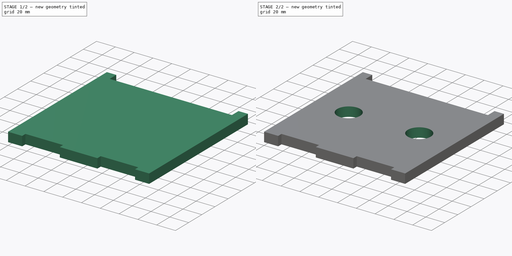
[diagram: build sequence overview — one tinted view per stage of 2, left to right]
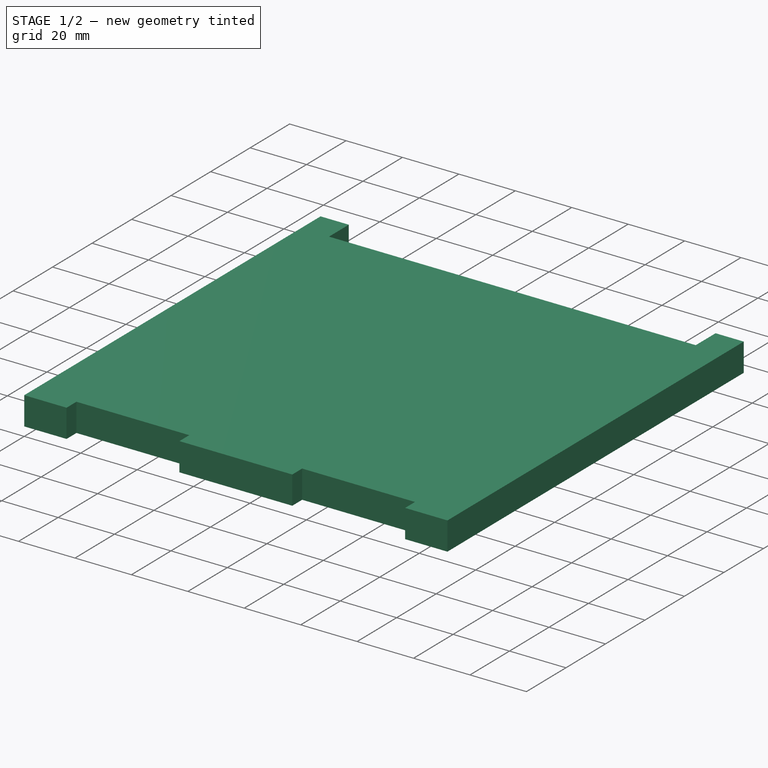
[diagram: stage 1 of 2 — iso view after this stage's code; geometry added in this stage tinted green]
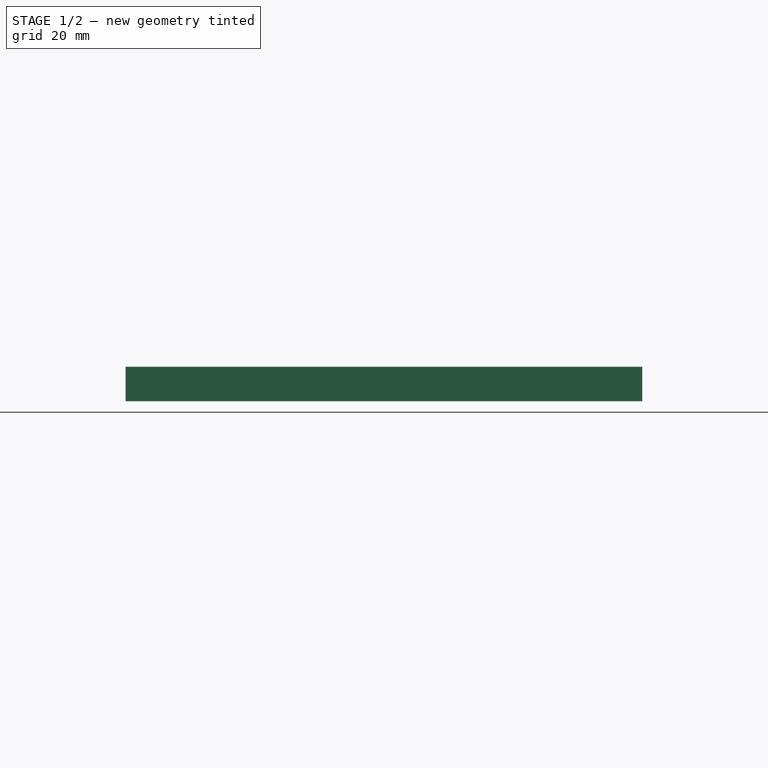
[diagram: stage 1 of 2 — front view after this stage's code; geometry added in this stage tinted green]
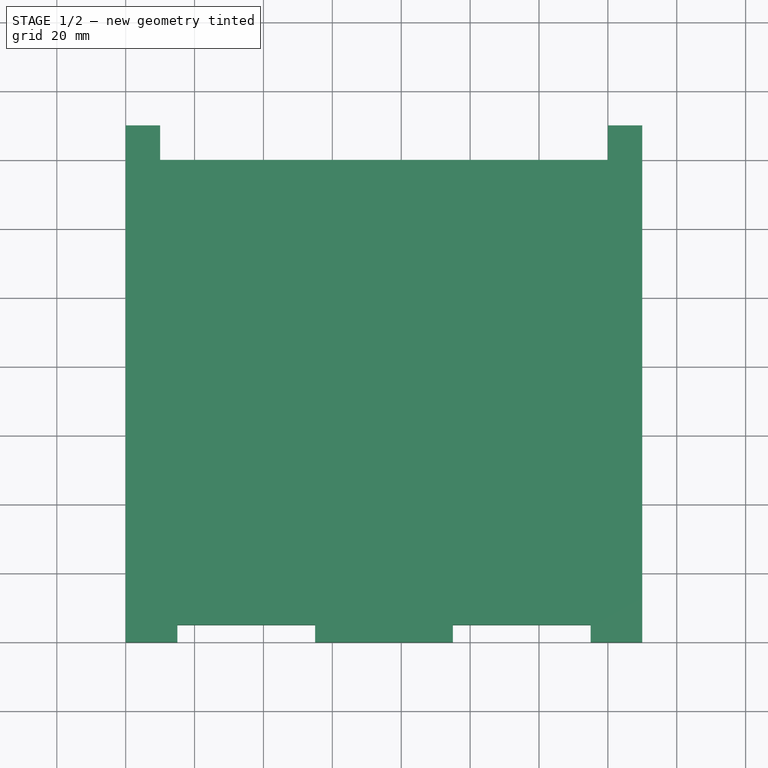
[diagram: stage 1 of 2 — top view after this stage's code; geometry added in this stage tinted green]
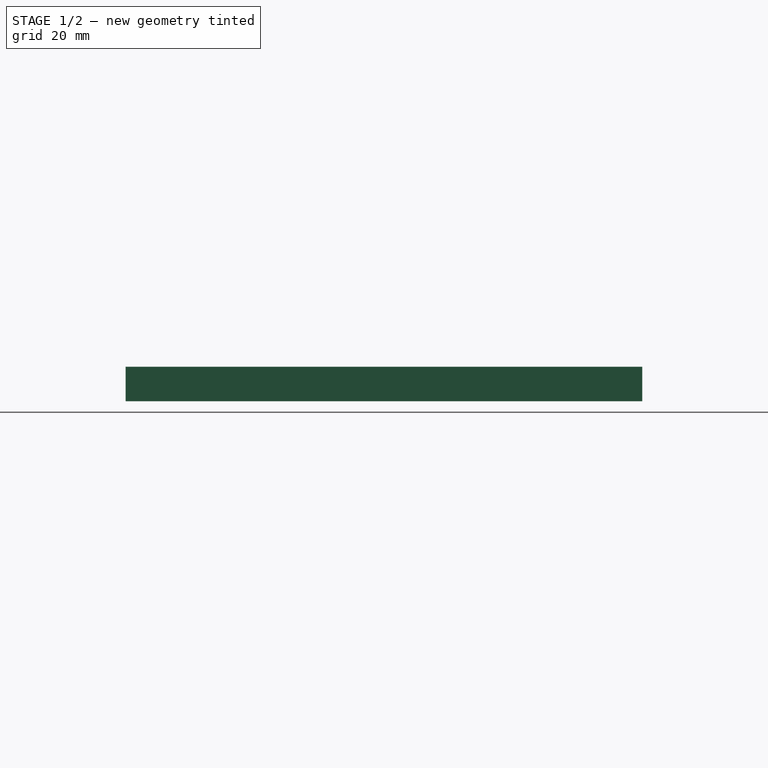
[diagram: stage 1 of 2 — right view after this stage's code; geometry added in this stage tinted green]
FCSTD DOCUMENT  (FreeCAD 0.19R24276 (Git))
Label: mix_components
License: All rights reserved
LicenseURL: http://en.wikipedia.org/wiki/All_rights_reserved
objects: Drawing::FeatureViewPart×13, Part::Feature×6, Sketcher::SketchObject×2, PartDesign::Pad×1, PartDesign::Pocket×1, PartDesign::Body×1, Drawing::FeaturePage×1
note: 13 computed .brp shape members not serialized (recipe doc carries the construction recipe); baked Part::Feature solids carry a one-line shape summary decoded from their .brp

FEATURE [Sketcher::SketchObject] Sketch
  FullyConstrained = true
  MapMode = 5
  Support = -> [XY_Plane]
  sketch-geometry (16):
    g0: LineSegment StartX=150 StartY=0 StartZ=0 EndX=150 EndY=150 EndZ=0
    g1: LineSegment StartX=150 StartY=150 StartZ=0 EndX=140 EndY=150 EndZ=0
    g2: LineSegment StartX=140 StartY=150 StartZ=0 EndX=140 EndY=140 EndZ=0
    g3: LineSegment StartX=140 StartY=140 StartZ=0 EndX=10 EndY=140 EndZ=0
    g4: LineSegment StartX=10 StartY=140 StartZ=0 EndX=10 EndY=150 EndZ=0
    g5: LineSegment StartX=10 StartY=150 StartZ=0 EndX=0 EndY=150 EndZ=0
    g6: LineSegment StartX=0 StartY=0 StartZ=0 EndX=0 EndY=150 EndZ=0
    g7: LineSegment StartX=15 StartY=5 StartZ=0 EndX=55 EndY=5 EndZ=0
    g8: LineSegment StartX=55 StartY=5 StartZ=0 EndX=55 EndY=0 EndZ=0
    g9: LineSegment StartX=55 StartY=0 StartZ=0 EndX=95 EndY=0 EndZ=0
    g10: LineSegment StartX=95 StartY=0 StartZ=0 EndX=95 EndY=5 EndZ=0
    g11: LineSegment StartX=95 StartY=5 StartZ=0 EndX=135 EndY=5 EndZ=0
    g12: LineSegment StartX=135 StartY=5 StartZ=0 EndX=135 EndY=0 EndZ=0
    g13: LineSegment StartX=135 StartY=0 StartZ=0 EndX=150 EndY=0 EndZ=0
    g14: LineSegment StartX=15 StartY=5 StartZ=0 EndX=15 EndY=0 EndZ=0
    g15: LineSegment StartX=15 StartY=0 StartZ=0 EndX=0 EndY=0 EndZ=0
  constraints (47):
    c: Vertical(g0)
    c: Coincident(g0,g1)
    c: Horizontal(g1)
    c: Coincident(g1,g2)
    c: Coincident(g2,g3)
    c: Horizontal(g3)
    c: Vertical(g2)
    c: Coincident(g3,g4)
    c: Vertical(g4)
    c: Coincident(g4,g5)
    c: Coincident(g6,g5)
    c: Vertical(g6)
    c: Horizontal(g5)
    c: Equal(g1,g5)
    c: Equal(g6,g0)
    c: DistanceX(g5,g5) = 10
    c: DistanceY(g0,g0) = 150
    c: DistanceY(g2,g2) = 10
    c: Horizontal(g7)
    c: Coincident(g7,g8)
    c: PointOnObject(g8,g-1)
    c: Coincident(g8,g9)
    c: PointOnObject(g9,g-1)
    c: Coincident(g9,g10)
    c: Coincident(g10,g11)
    c: Horizontal(g11)
    c: Coincident(g11,g12)
    c: PointOnObject(g12,g-1)
    c: Vertical(g12)
    c: Coincident(g12,g13)
    c: Coincident(g13,g0)
    c: Horizontal(g13)
    c: Coincident(g7,g14)
    c: PointOnObject(g14,g-1)
    c: Vertical(g14)
    c: Coincident(g14,g15)
    c: Coincident(g15,g6)
    c: Coincident(g6,g-1)
    c: Vertical(g8)
    c: Vertical(g10)
    c: Equal(g15,g13)
    c: Equal(g7,g11)
    c: DistanceX(g7,g7) = 40
    c: DistanceX(g15,g15) = 15
    c: Equal(g8,g10)
    c: DistanceY(g10,g10) = 5
    c: DistanceX(g3,g3) = 130
FEATURE [PartDesign::Pad] Pad
  Direction = (1,1,1)
  Length = 10
  Length2 = 100
  Profile = -> Sketch
  Type = 0
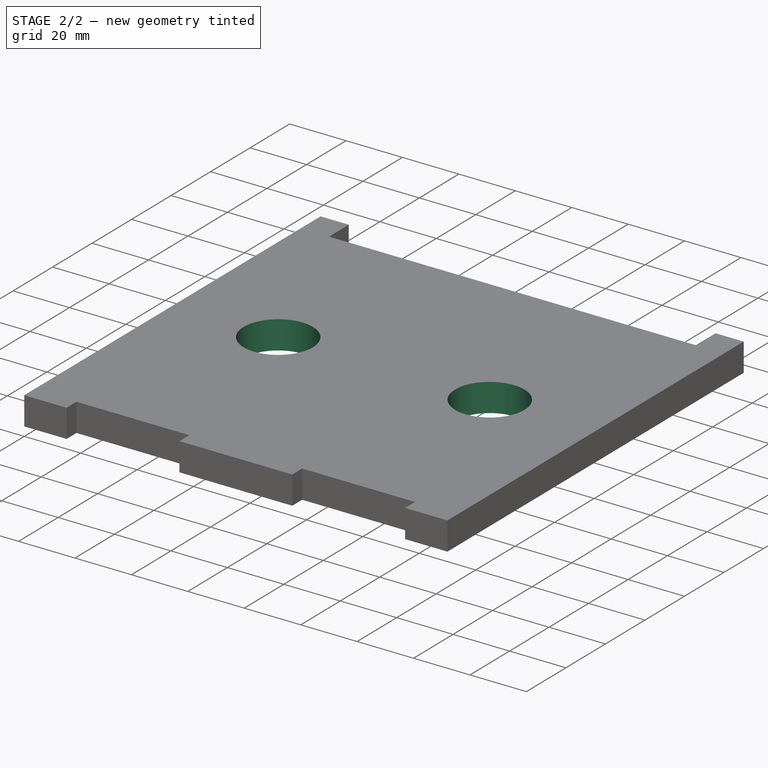
[diagram: stage 2 of 2 — iso view after this stage's code; geometry added in this stage tinted green]
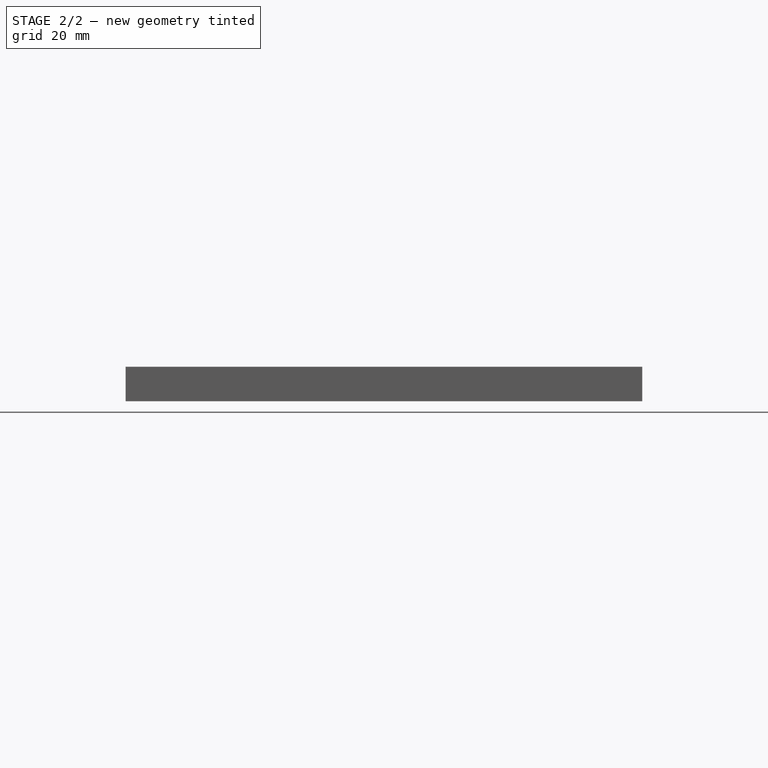
[diagram: stage 2 of 2 — front view after this stage's code; geometry added in this stage tinted green]
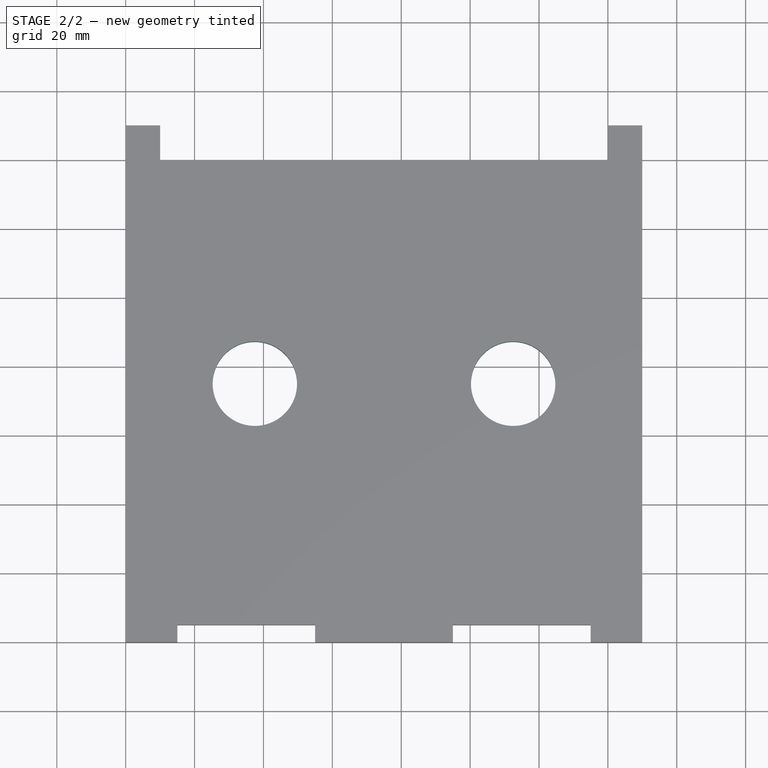
[diagram: stage 2 of 2 — top view after this stage's code; geometry added in this stage tinted green]
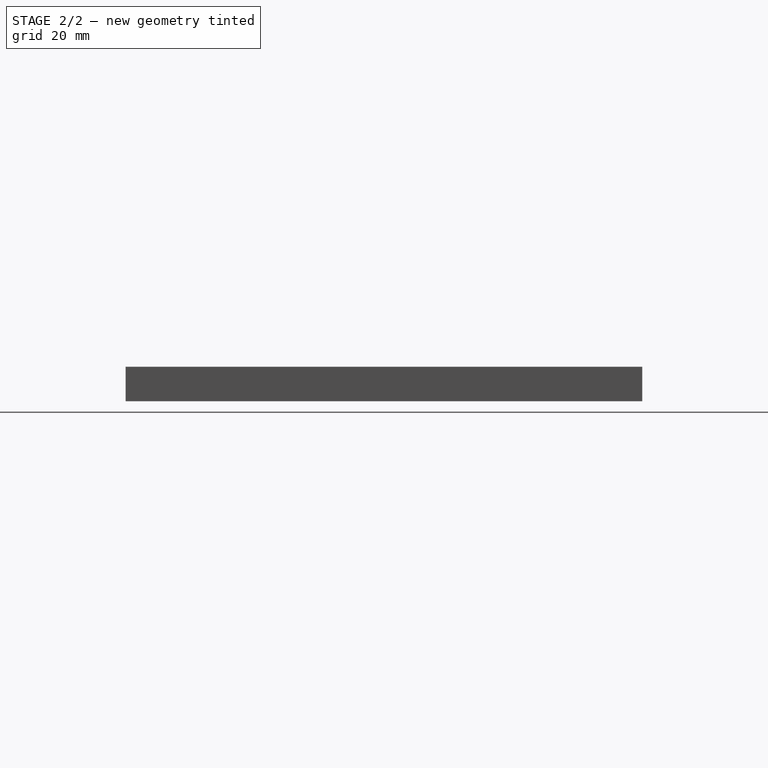
[diagram: stage 2 of 2 — right view after this stage's code; geometry added in this stage tinted green]
FEATURE [Sketcher::SketchObject] Sketch001
  FullyConstrained = true
  MapMode = 5
  Placement = pos=(0,0,10) rot=(0,0,1;0rad)
  Support = -> [Pad]
  sketch-geometry (2):
    g0: Circle CenterX=37.5 CenterY=75 CenterZ=0 NormalX=0 NormalY=0 NormalZ=1 AngleXU=0 Radius=12.25
    g1: Circle CenterX=112.5 CenterY=75 CenterZ=0 NormalX=0 NormalY=0 NormalZ=1 AngleXU=0 Radius=12.25
  constraints (6):
    c: DistanceX(g-1,g0) = 37.5
    c: Diameter(g0) = 24.5
    c: DistanceY(g-1,g0) = 75
    c: Equal(g0,g1) = 24.5
    c: DistanceX(g-1,g1) = 112.5
    c: DistanceY(g-1,g1) = 75
FEATURE [PartDesign::Pocket] Pocket
  BaseFeature = -> Pad
  Length = 10
  Length2 = 100
  Profile = -> Sketch001
  Type = 1
FEATURE [PartDesign::Body] Body
  Group = -> [Sketch,Pad,Sketch001,Pocket]
  Origin = -> Origin
  Tip = -> Pocket
FEATURE [Drawing::FeatureViewPart] Ortho  label="Ortho_0_0"
  Direction = (1,0,0)
  HiddenWidth = 0.15
  LineWidth = 0.35
  Rotation = -90
  Scale = 0.375
  ShowHiddenLines = false
  ShowSmoothLines = false
  Source = -> Body
  Tolerance = 0.05
  ViewResult = <g id="Ortho_0_0"\n   transform="rotate(-90,181.875,120.375) translate(181.875,120.375) scale(0.375,0.375)"\n  >\n<g   fill="none"\n   stroke="rgb(0, 0, 0)"\n   stroke-linecap="butt"\n   stroke-linejoin="miter"\n   stroke-width="0.933333"\n   transform="scale(1,-1)"\n  >\n<path id= "1" d=" M 0 0 L 0 -150 " />\n<path id= "2" d=" M 10 0 L 10 -150 " />\n<path id= "3" d=" M 0 0 L 10 0 " />\n<path id= "4" d=" M 0 -150 L 10 -150 " />\n</g>\n</g>
  Visible = false
  X = 181.875
  Y = 120.375
FEATURE [Drawing::FeatureViewPart] Ortho001  label="Ortho_-1_1"
  Direction = (0.57735,-0.57735,0.57735)
  HiddenWidth = 0.15
  LineWidth = 0.35
  Rotation = 60
  Scale = 0.375
  ShowHiddenLines = false
  ShowSmoothLines = false
  Source = -> Body
  Tolerance = 0.05
  ViewResult = <blob: 2807 chars omitted>
  Visible = false
  X = 94.1836
  Y = 74.4893
FEATURE [Drawing::FeatureViewPart] Ortho002  label="Ortho_-1_0"
  Direction = (0,-1,0)
  HiddenWidth = 0.15
  LineWidth = 0.35
  Rotation = 90
  Scale = 0.375
  ShowHiddenLines = false
  ShowSmoothLines = false
  Source = -> Body
  Tolerance = 0.05
  ViewResult = <g id="Ortho_-1_0"\n   transform="rotate(90,105.833,120.375) translate(105.833,120.375) scale(0.375,0.375)"\n  >\n<g   fill="none"\n   stroke="rgb(0, 0, 0)"\n   stroke-linecap="butt"\n   stroke-linejoin="miter"\n   stroke-width="0.933333"\n   transform="scale(1,-1)"\n  >\n<path id= "1" d=" M 0 15 L 0 55 " />\n<path id= "2" d=" M -10 15 L -10 55 " />\n<path id= "3" d=" M 0 15 L -10 15 " />\n<path id= "4" d=" M 0 55 L -10 55 " />\n<path id= "5" d=" M 0 15 L 0 0 " />\n<path id= "6" d=" M 0 55 L 0 95 " />\n<path id= "7" d=" M 0 95 L 0 135 " />\n<path id= "8" d=" M 0 135 L 0 150 " />\n<path id= "9" d=" M -10 15 L -10 0 " />\n<path id= "10" d=" M -10 55 L -10 95 " />\n<path id= "11" d=" M -10 95 L -10 135 " />\n<path id= "12" d=" M -10 135 L -10 150 " />\n<path id= "13" d=" M 0 0 L -10 0 " />\n<path id= "14" d=" M 0 95 L -10 95 " />\n<path id= "15" d=" M 0 135 L -10 135 " />\n<path id= "16" d=" M 0 150 L -10 150 " />\n</g>\n</g>
  Visible = false
  X = 105.833
  Y = 120.375
FEATURE [Drawing::FeatureViewPart] Ortho003  label="Ortho_-1_-1"
  Direction = (0.57735,-0.57735,-0.57735)
  HiddenWidth = 0.15
  LineWidth = 0.35
  Rotation = 120
  Scale = 0.375
  ShowHiddenLines = false
  ShowSmoothLines = false
  Source = -> Body
  Tolerance = 0.05
  ViewResult = <blob: 2895 chars omitted>
  Visible = false
  X = 94.1836
  Y = 165.573
FEATURE [Drawing::FeatureViewPart] Ortho004  label="Ortho_0_-1"
  Direction = (0,0,-1)
  HiddenWidth = 0.15
  LineWidth = 0.35
  Rotation = 90
  Scale = 0.375
  ShowHiddenLines = false
  ShowSmoothLines = false
  Source = -> Body
  Tolerance = 0.05
  ViewResult = <g id="Ortho_0_-1"\n   transform="rotate(90,181.875,192.167) translate(181.875,192.167) scale(0.375,0.375)"\n  >\n<g   fill="none"\n   stroke="rgb(0, 0, 0)"\n   stroke-linecap="butt"\n   stroke-linejoin="miter"\n   stroke-width="0.933333"\n   transform="scale(1,-1)"\n  >\n<path id= "1" d=" M -15 5 L -55 5 " />\n<path id= "2" d=" M -15 5 L -15 0 " />\n<path id= "3" d=" M -55 5 L -55 0 " />\n<path id= "4" d=" M -15 0 L 0 0 " />\n<path id= "5" d=" M -55 0 L -95 0 " />\n<path id= "6" d=" M 0 0 L 0 150 " />\n<path id= "7" d=" M -95 0 L -95 5 " />\n<path id= "8" d=" M -10 150 L 0 150 " />\n<path id= "9" d=" M -95 5 L -135 5 " />\n<path id= "10" d=" M -10 140 L -10 150 " />\n<path id= "11" d=" M -135 5 L -135 0 " />\n<path id= "12" d=" M -140 140 L -10 140 " />\n<path id= "13" d=" M -135 0 L -150 0 " />\n<path id= "14" d=" M -140 150 L -140 140 " />\n<path id= "15" d=" M -150 0 L -150 150 " />\n<path id= "16" d=" M -150 150 L -140 150 " />\n<circle cx ="-37.5" cy ="75" r ="12.25" /><circle cx ="-112.5" cy ="75" r ="12.25" /></g>\n</g>
  Visible = false
  X = 181.875
  Y = 192.167
FEATURE [Drawing::FeatureViewPart] Ortho005  label="Ortho_0_-2"
  Direction = (-1,0,0)
  HiddenWidth = 0.15
  LineWidth = 0.35
  Rotation = -90
  Scale = 0.375
  ShowHiddenLines = false
  ShowSmoothLines = false
  Source = -> Body
  Tolerance = 0.05
  ViewResult = <g id="Ortho_0_-2"\n   transform="rotate(-90,181.875,207.708) translate(181.875,207.708) scale(0.375,0.375)"\n  >\n<g   fill="none"\n   stroke="rgb(0, 0, 0)"\n   stroke-linecap="butt"\n   stroke-linejoin="miter"\n   stroke-width="0.933333"\n   transform="scale(1,-1)"\n  >\n<path id= "1" d=" M 0 0 L 0 -150 " />\n<path id= "2" d=" M -10 0 L -10 -150 " />\n<path id= "3" d=" M 0 0 L -10 0 " />\n<path id= "4" d=" M 0 -150 L -10 -150 " />\n</g>\n</g>
  Visible = false
  X = 181.875
  Y = 207.708
FEATURE [Drawing::FeatureViewPart] Ortho006  label="Ortho_0_2"
  Direction = (-1,0,0)
  HiddenWidth = 0.15
  LineWidth = 0.35
  Rotation = -90
  Scale = 0.375
  ShowHiddenLines = false
  ShowSmoothLines = false
  Source = -> Body
  Tolerance = 0.05
  ViewResult = <g id="Ortho_0_2"\n   transform="rotate(-90,181.875,25.5417) translate(181.875,25.5417) scale(0.375,0.375)"\n  >\n<g   fill="none"\n   stroke="rgb(0, 0, 0)"\n   stroke-linecap="butt"\n   stroke-linejoin="miter"\n   stroke-width="0.933333"\n   transform="scale(1,-1)"\n  >\n<path id= "1" d=" M 0 0 L 0 -150 " />\n<path id= "2" d=" M -10 0 L -10 -150 " />\n<path id= "3" d=" M 0 0 L -10 0 " />\n<path id= "4" d=" M 0 -150 L -10 -150 " />\n</g>\n</g>
  Visible = false
  X = 181.875
  Y = 25.5417
FEATURE [Drawing::FeatureViewPart] Ortho007  label="Ortho_0_1"
  Direction = (0,0,1)
  HiddenWidth = 0.15
  LineWidth = 0.35
  Rotation = 90
  Scale = 0.375
  ShowHiddenLines = false
  ShowSmoothLines = false
  Source = -> Body
  Tolerance = 0.05
  ViewResult = <g id="Ortho_0_1"\n   transform="rotate(90,181.875,44.8333) translate(181.875,44.8333) scale(0.375,0.375)"\n  >\n<g   fill="none"\n   stroke="rgb(0, 0, 0)"\n   stroke-linecap="butt"\n   stroke-linejoin="miter"\n   stroke-width="0.933333"\n   transform="scale(1,-1)"\n  >\n<path id= "1" d=" M 15 5 L 55 5 " />\n<path id= "2" d=" M 15 5 L 15 0 " />\n<path id= "3" d=" M 55 5 L 55 0 " />\n<path id= "4" d=" M 15 0 L 0 0 " />\n<path id= "5" d=" M 55 0 L 95 0 " />\n<path id= "6" d=" M 0 0 L 0 150 " />\n<path id= "7" d=" M 95 0 L 95 5 " />\n<path id= "8" d=" M 10 150 L 0 150 " />\n<path id= "9" d=" M 95 5 L 135 5 " />\n<path id= "10" d=" M 10 140 L 10 150 " />\n<path id= "11" d=" M 135 5 L 135 0 " />\n<path id= "12" d=" M 140 140 L 10 140 " />\n<path id= "13" d=" M 135 0 L 150 0 " />\n<path id= "14" d=" M 140 150 L 140 140 " />\n<path id= "15" d=" M 150 0 L 150 150 " />\n<path id= "16" d=" M 150 150 L 140 150 " />\n<circle cx ="37.5" cy ="75" r ="12.25" /><circle cx ="112.5" cy ="75" r ="12.25" /></g>\n</g>
  Visible = false
  X = 181.875
  Y = 44.8333
FEATURE [Drawing::FeatureViewPart] Ortho008  label="Ortho_1_0"
  Direction = (0,1,0)
  HiddenWidth = 0.15
  LineWidth = 0.35
  Rotation = -90
  Scale = 0.375
  ShowHiddenLines = false
  ShowSmoothLines = false
  Source = -> Body
  Tolerance = 0.05
  ViewResult = <g id="Ortho_1_0"\n   transform="rotate(-90,314.167,120.375) translate(314.167,120.375) scale(0.375,0.375)"\n  >\n<g   fill="none"\n   stroke="rgb(0, 0, 0)"\n   stroke-linecap="butt"\n   stroke-linejoin="miter"\n   stroke-width="0.933333"\n   transform="scale(1,-1)"\n  >\n<path id= "1" d=" M 0 10 L 0 0 " />\n<path id= "2" d=" M 0 140 L 0 10 " />\n<path id= "3" d=" M 0 150 L 0 140 " />\n<path id= "4" d=" M 10 10 L 10 0 " />\n<path id= "5" d=" M 10 140 L 10 10 " />\n<path id= "6" d=" M 10 150 L 10 140 " />\n<path id= "7" d=" M 0 0 L 10 0 " />\n<path id= "8" d=" M 0 10 L 10 10 " />\n<path id= "9" d=" M 0 140 L 10 140 " />\n<path id= "10" d=" M 0 150 L 10 150 " />\n</g>\n</g>
  Visible = false
  X = 314.167
  Y = 120.375
FEATURE [Drawing::FeatureViewPart] Ortho009  label="Ortho_1_1"
  Direction = (0.57735,0.57735,0.57735)
  HiddenWidth = 0.15
  LineWidth = 0.35
  Rotation = 120
  Scale = 0.375
  ShowHiddenLines = false
  ShowSmoothLines = false
  Source = -> Body
  Tolerance = 0.05
  ViewResult = <blob: 2536 chars omitted>
  Visible = false
  X = 286.042
  Y = 51.5253
FEATURE [Drawing::FeatureViewPart] Ortho010  label="Ortho_1_-1"
  Direction = (0.57735,0.57735,-0.57735)
  HiddenWidth = 0.15
  LineWidth = 0.35
  Rotation = 60
  Scale = 0.375
  ShowHiddenLines = false
  ShowSmoothLines = false
  Source = -> Body
  Tolerance = 0.05
  ViewResult = <blob: 2603 chars omitted>
  Visible = false
  X = 286.042
  Y = 188.537
FEATURE [Drawing::FeatureViewPart] Ortho011  label="Ortho_2_0"
  Direction = (-1,0,0)
  HiddenWidth = 0.15
  LineWidth = 0.35
  Rotation = 90
  Scale = 0.375
  ShowHiddenLines = false
  ShowSmoothLines = false
  Source = -> Body
  Tolerance = 0.05
  ViewResult = <g id="Ortho_2_0"\n   transform="rotate(90,390.208,120.375) translate(390.208,120.375) scale(0.375,0.375)"\n  >\n<g   fill="none"\n   stroke="rgb(0, 0, 0)"\n   stroke-linecap="butt"\n   stroke-linejoin="miter"\n   stroke-width="0.933333"\n   transform="scale(1,-1)"\n  >\n<path id= "1" d=" M 0 0 L 0 -150 " />\n<path id= "2" d=" M -10 0 L -10 -150 " />\n<path id= "3" d=" M 0 0 L -10 0 " />\n<path id= "4" d=" M 0 -150 L -10 -150 " />\n</g>\n</g>
  Visible = false
  X = 390.208
  Y = 120.375
FEATURE [Drawing::FeatureViewPart] Ortho012  label="Ortho_-2_0"
  Direction = (-1,0,0)
  HiddenWidth = 0.15
  LineWidth = 0.35
  Rotation = 90
  Scale = 0.375
  ShowHiddenLines = false
  ShowSmoothLines = false
  Source = -> Body
  Tolerance = 0.05
  ViewResult = <g id="Ortho_-2_0"\n   transform="rotate(90,86.0417,120.375) translate(86.0417,120.375) scale(0.375,0.375)"\n  >\n<g   fill="none"\n   stroke="rgb(0, 0, 0)"\n   stroke-linecap="butt"\n   stroke-linejoin="miter"\n   stroke-width="0.933333"\n   transform="scale(1,-1)"\n  >\n<path id= "1" d=" M 0 0 L 0 -150 " />\n<path id= "2" d=" M -10 0 L -10 -150 " />\n<path id= "3" d=" M 0 0 L -10 0 " />\n<path id= "4" d=" M 0 -150 L -10 -150 " />\n</g>\n</g>
  Visible = false
  X = 86.0417
  Y = 120.375
FEATURE [Drawing::FeaturePage] Page
  EditableTexts = AUTHOR NAME | CREATION DATE | SUPERVISOR NAME | CHECK DATE | SCALE | WEIGHT | NUMBER | SHEET | TITLE | SUBTITLE
  Group = -> [Ortho,Ortho001,Ortho002,Ortho003,Ortho004,Ortho005,Ortho006,Ortho007,Ortho008,Ortho009,Ortho010,Ortho011,Ortho012]
  Template = /snap/freecad/22/opt/local/FreeCAD-0.19/share/Mod/Drawing/Templates/A3_Landscape.svg
FEATURE [Part::Feature] Part__Feature  label="Body001"
  Placement = pos=(150,145,10) rot=(0.57735,-0.57735,0.57735;2.0944rad)
  shape: bbox 150 x 10 x 80 mm, 16 faces (baked)
FEATURE [Part::Feature] Part__Feature001  label="Body002"
  Placement = pos=(0,0,75) rot=(0,0,1;0rad)
  shape: bbox 150 x 150 x 10 mm, 26 faces (baked)
FEATURE [Part::Feature] Part__Feature002  label="Body003"
  Placement = pos=(95,-3.8e-14,55) rot=(0.57735,0.57735,0.57735;4.18879rad)
  shape: bbox 40 x 10 x 40 mm, 10 faces (baked)
FEATURE [Part::Feature] Part__Feature003  label="Body004"
  Placement = pos=(15,-3.8e-14,55) rot=(0.57735,0.57735,0.57735;4.18879rad)
  shape: bbox 40 x 10 x 40 mm, 10 faces (baked)
FEATURE [Part::Feature] Part__Feature004  label="Body005"
  Placement = pos=(15,-3.8e-14,-15) rot=(0.57735,0.57735,0.57735;4.18879rad)
  shape: bbox 40 x 10 x 40 mm, 10 faces (baked)
FEATURE [Part::Feature] Part__Feature005  label="Body006"
  Placement = pos=(95,-3.8e-14,-15) rot=(0.57735,0.57735,0.57735;4.18879rad)
  shape: bbox 40 x 10 x 40 mm, 10 faces (baked)
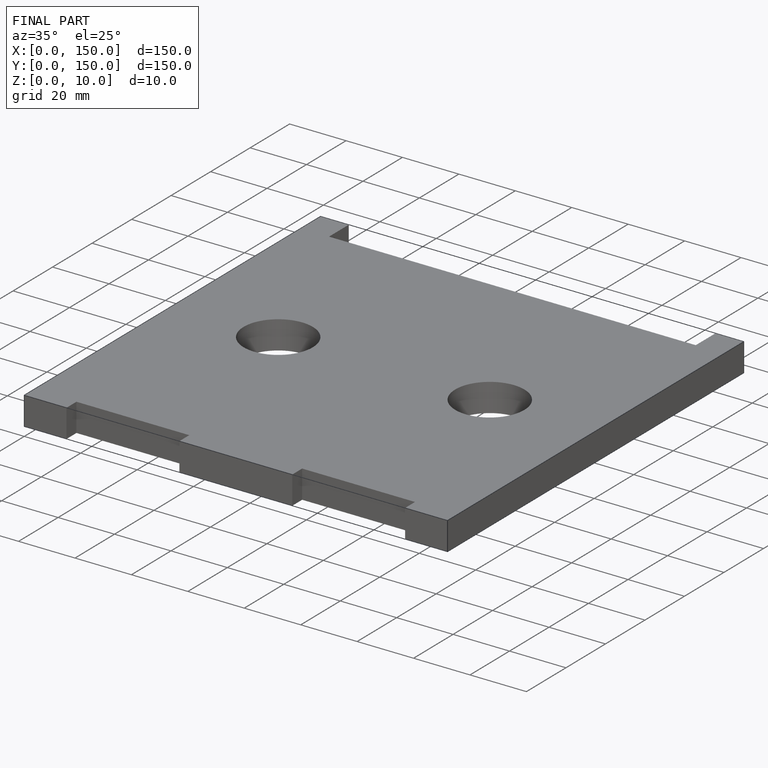
[diagram: finished part — iso view with bounding-box wireframe]
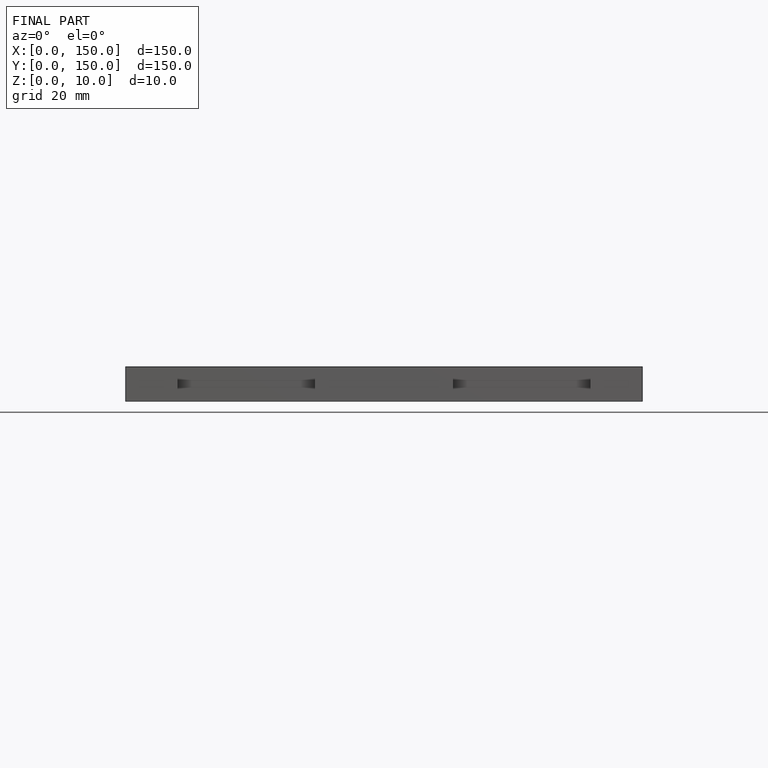
[diagram: finished part — front view with bounding-box wireframe]
